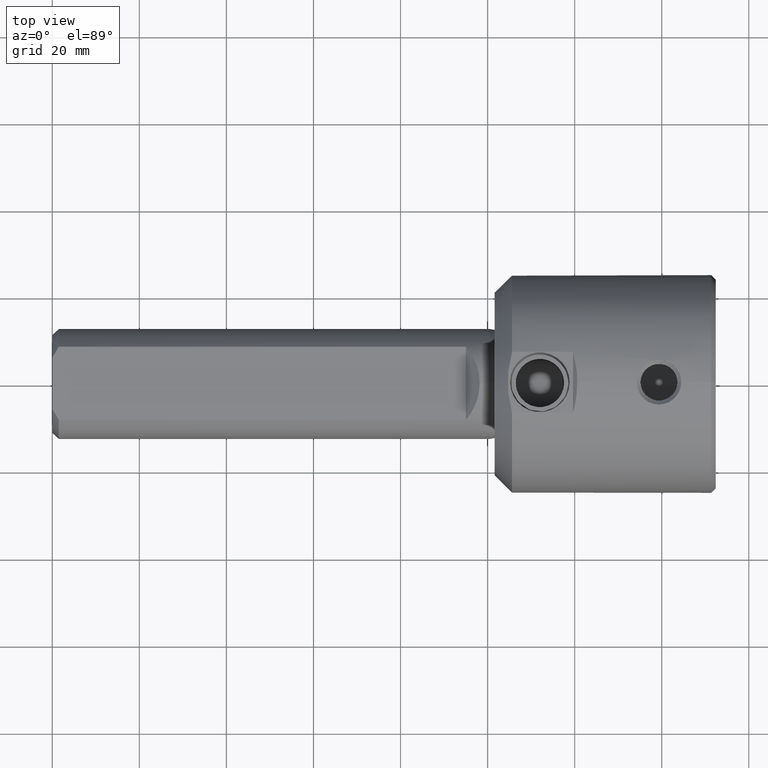
[diagram: clean part render]
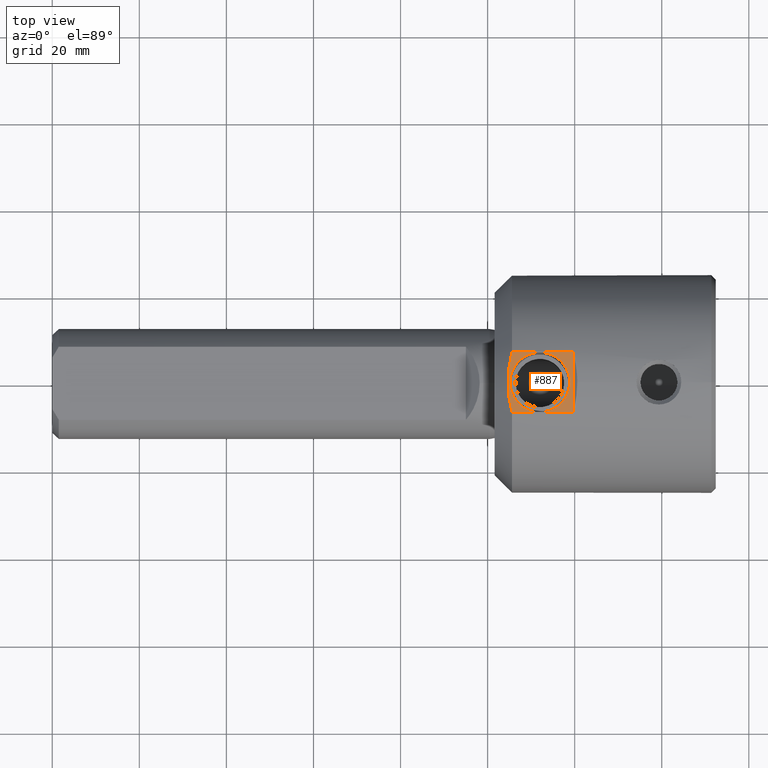
[diagram: same view with one face highlighted and labeled with its STEP entity id]
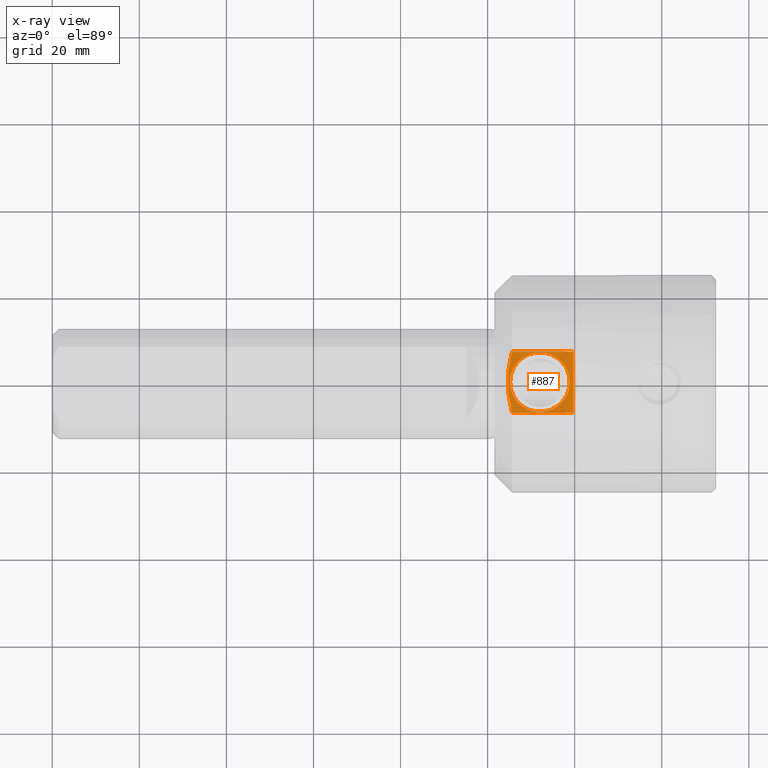
[diagram: x-ray of the same camera — body ghosted, the highlighted face saturated]
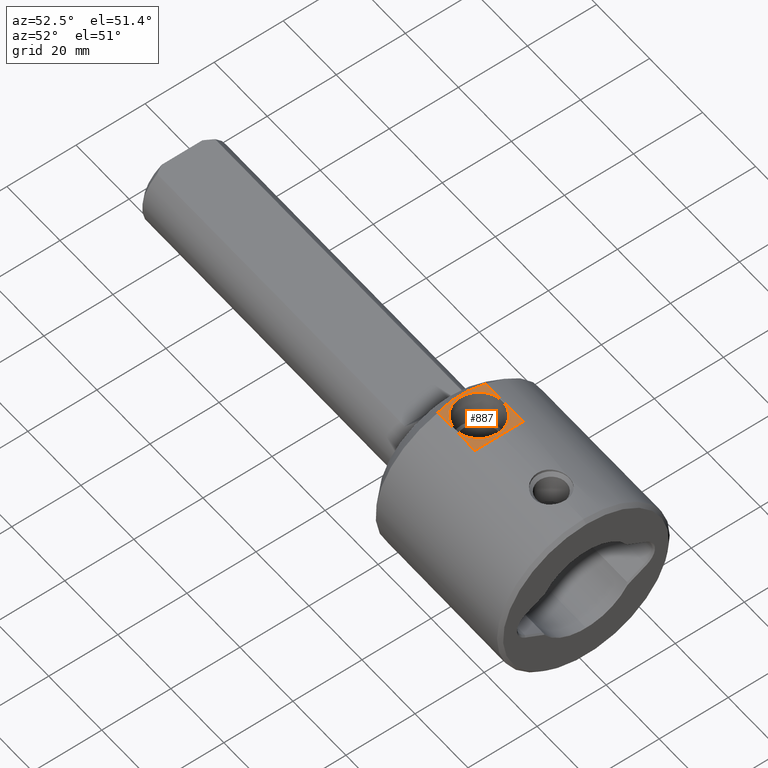
[diagram: same view with one face highlighted and labeled with its STEP entity id]
A machine part, top view. The second image highlights one B-rep face of the part: STEP entity #887.
The next image is the same camera in x-ray: the body ghosted, the highlighted face saturated — about 0% of this face is hidden behind the body in this view.
A second angle (auxiliary view) of the same face is appended — the face is thin or edge-on in the first view.
In plain terms, the highlighted planar face has unit normal (-0, 0, -1).
Its self-contained STEP definition (entity closure, byte-faithful):
#21 = CARTESIAN_POINT ( 'NONE',  ( 104.7753954549506972, 2.963669611006084725, 24.00000000000000000 ) ) ;
#26 = CARTESIAN_POINT ( 'NONE',  ( 105.5999999999999943, -7.000000000000007994, 24.00000000000000000 ) ) ;
#51 = CARTESIAN_POINT ( 'NONE',  ( 105.5999999999999943, 7.000000000000007994, 24.00000000000000000 ) ) ;
#53 = AXIS2_PLACEMENT_3D ( 'NONE', #1541, #659, #1309 ) ;
#64 = CARTESIAN_POINT ( 'NONE',  ( 119.6000000000000085, -25.00000000000000000, 24.00000000000000000 ) ) ;
#165 = CARTESIAN_POINT ( 'NONE',  ( 104.9422862664982432, -4.108623783569516519, 24.00000000000000711 ) ) ;
#166 = CARTESIAN_POINT ( 'NONE',  ( 105.5999999999999943, -7.000000000000007994, 24.00000000000000000 ) ) ;
#175 = DIRECTION ( 'NONE',  ( -0.0000000000000000000, 0.0000000000000000000, -1.000000000000000000 ) ) ;
#228 = EDGE_CURVE ( 'NONE', #229, #834, #380, .T. ) ;
#229 = VERTEX_POINT ( 'NONE', #166 ) ;
#266 = LINE ( 'NONE', #64, #687 ) ;
#285 = VERTEX_POINT ( 'NONE', #1094 ) ;
#295 = ORIENTED_EDGE ( 'NONE', *, *, #1331, .F. ) ;
#333 = ORIENTED_EDGE ( 'NONE', *, *, #721, .T. ) ;
#356 = FACE_BOUND ( 'NONE', #922, .T. ) ;
#380 = B_SPLINE_CURVE_WITH_KNOTS ( 'NONE', 3,
 ( #26, #920, #927, #1164, #165, #1308, #913, #908, #554, #1051, #21, #1043, #801, #1040 ),
 .UNSPECIFIED., .F., .F.,
 ( 4, 2, 2, 2, 2, 2, 4 ),
 ( 0.01069655909715698516, 0.01245807527713402654, 0.01421959145711106792, 0.01774262381706515762, 0.01950413999704220247, 0.02126565617701924385, 0.02478868853697333702 ),
 .UNSPECIFIED. ) ;
#422 = LINE ( 'NONE', #1646, #739 ) ;
#464 = VECTOR ( 'NONE', #601, 1000.000000000000000 ) ;
#554 = CARTESIAN_POINT ( 'NONE',  ( 104.6221628779220651, 1.189176098926141067, 23.99999999999999645 ) ) ;
#577 = CIRCLE ( 'NONE', #53, 6.857987299999993347 ) ;
#601 = DIRECTION ( 'NONE',  ( -1.000000000000000000, -0.0000000000000000000, -0.0000000000000000000 ) ) ;
#659 = DIRECTION ( 'NONE',  ( -0.0000000000000000000, -0.0000000000000000000, 1.000000000000000000 ) ) ;
#670 = VERTEX_POINT ( 'NONE', #829 ) ;
#687 = VECTOR ( 'NONE', #1568, 1000.000000000000000 ) ;
#694 = ORIENTED_EDGE ( 'NONE', *, *, #1454, .F. ) ;
#721 = EDGE_CURVE ( 'NONE', #1565, #670, #266, .T. ) ;
#739 = VECTOR ( 'NONE', #880, 1000.000000000000000 ) ;
#742 = CARTESIAN_POINT ( 'NONE',  ( 119.6000000000000085, -6.999999999999978684, 24.00000000000000000 ) ) ;
#748 = ORIENTED_EDGE ( 'NONE', *, *, #228, .F. ) ;
#801 = CARTESIAN_POINT ( 'NONE',  ( 105.2822245094906890, 5.865087533895276373, 24.00000000000000000 ) ) ;
#829 = CARTESIAN_POINT ( 'NONE',  ( 119.6000000000000085, 6.999999999999964473, 24.00000000000000000 ) ) ;
#834 = VERTEX_POINT ( 'NONE', #51 ) ;
#868 = ORIENTED_EDGE ( 'NONE', *, *, #1281, .F. ) ;
#880 = DIRECTION ( 'NONE',  ( 1.000000000000000000, 0.0000000000000000000, 0.0000000000000000000 ) ) ;
#887 = ADVANCED_FACE ( 'NONE', ( #356, #1090 ), #1069, .F. ) ;
#908 = CARTESIAN_POINT ( 'NONE',  ( 104.6000526885396198, 0.5937704797230353160, 24.00000000000000000 ) ) ;
#913 = CARTESIAN_POINT ( 'NONE',  ( 104.5998949074058828, -1.181140502303070328, 24.00000000000000000 ) ) ;
#920 = CARTESIAN_POINT ( 'NONE',  ( 105.4404609078946606, -6.430217528195291798, 24.00000000000000355 ) ) ;
#922 = EDGE_LOOP ( 'NONE', ( #295 ) ) ;
#927 = CARTESIAN_POINT ( 'NONE',  ( 105.2965953631769622, -5.851774677115027856, 24.00000000000000000 ) ) ;
#1033 = AXIS2_PLACEMENT_3D ( 'NONE', #1572, #175, #1599 ) ;
#1040 = CARTESIAN_POINT ( 'NONE',  ( 105.5999999999999943, 7.000000000000007994, 24.00000000000000000 ) ) ;
#1043 = CARTESIAN_POINT ( 'NONE',  ( 105.0315150031296838, 4.715219399768534991, 24.00000000000000000 ) ) ;
#1051 = CARTESIAN_POINT ( 'NONE',  ( 104.7100086611503542, 2.375362730528646438, 24.00000000000000000 ) ) ;
#1069 = PLANE ( 'NONE',  #1033 ) ;
#1090 = FACE_OUTER_BOUND ( 'NONE', #1408, .T. ) ;
#1094 = CARTESIAN_POINT ( 'NONE',  ( 118.8579872999999907, 0.0000000000000000000, 24.00000000000000000 ) ) ;
#1164 = CARTESIAN_POINT ( 'NONE',  ( 105.0475437456541101, -4.690825037762976990, 24.00000000000000711 ) ) ;
#1194 = LINE ( 'NONE', #1207, #464 ) ;
#1207 = CARTESIAN_POINT ( 'NONE',  ( 0.0000000000000000000, -7.000000000000007994, 24.00000000000000000 ) ) ;
#1281 = EDGE_CURVE ( 'NONE', #834, #670, #422, .T. ) ;
#1308 = CARTESIAN_POINT ( 'NONE',  ( 104.6877087265096691, -2.356536982995580676, 23.99999999999999289 ) ) ;
#1309 = DIRECTION ( 'NONE',  ( 1.000000000000000000, 0.0000000000000000000, 0.0000000000000000000 ) ) ;
#1331 = EDGE_CURVE ( 'NONE', #285, #285, #577, .T. ) ;
#1408 = EDGE_LOOP ( 'NONE', ( #333, #868, #748, #694 ) ) ;
#1454 = EDGE_CURVE ( 'NONE', #1565, #229, #1194, .T. ) ;
#1541 = CARTESIAN_POINT ( 'NONE',  ( 112.0000000000000000, 0.0000000000000000000, 24.00000000000000000 ) ) ;
#1565 = VERTEX_POINT ( 'NONE', #742 ) ;
#1568 = DIRECTION ( 'NONE',  ( -0.0000000000000000000, 1.000000000000000000, -0.0000000000000000000 ) ) ;
#1572 = CARTESIAN_POINT ( 'NONE',  ( 119.6000000000000085, -25.00000000000000000, 24.00000000000000000 ) ) ;
#1599 = DIRECTION ( 'NONE',  ( -1.000000000000000000, 0.0000000000000000000, 0.0000000000000000000 ) ) ;
#1646 = CARTESIAN_POINT ( 'NONE',  ( 0.0000000000000000000, 7.000000000000007994, 24.00000000000000000 ) ) ;